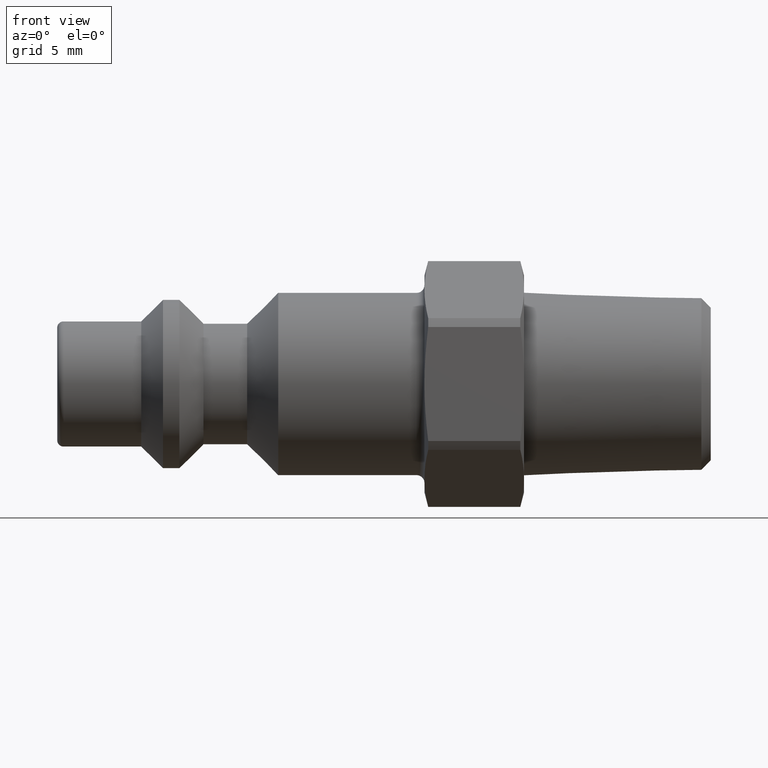
[diagram: clean part render]
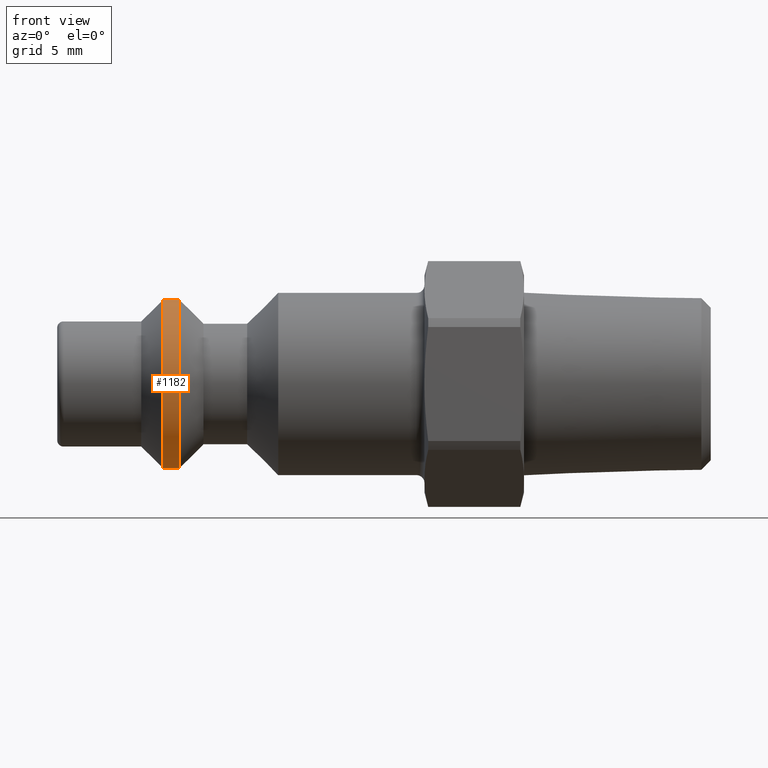
[diagram: same view with one face highlighted and labeled with its STEP entity id]
A machine part, front view. The second image highlights one B-rep face of the part: STEP entity #1182.
In plain terms, the highlighted cylindrical surface (bore or boss wall) has radius 5.45 mm, axis along (1, 0, 0).
Its self-contained STEP definition (entity closure, byte-faithful):
#1148=CARTESIAN_POINT('',(6.799999999999997,5.45,0.0));
#1149=VERTEX_POINT('',#1148);
#1150=CARTESIAN_POINT('',(6.799999999999997,0.0,0.0));
#1151=DIRECTION('',(1.0,0.0,0.0));
#1152=DIRECTION('',(0.0,1.0,0.0));
#1153=AXIS2_PLACEMENT_3D('',#1150,#1151,#1152);
#1154=CIRCLE('',#1153,5.45);
#1155=EDGE_CURVE('',#1149,#1149,#1154,.T.);
#1163=CARTESIAN_POINT('',(7.324999999999998,0.0,0.0));
#1164=DIRECTION('',(1.0,0.0,0.0));
#1165=DIRECTION('',(0.0,1.0,0.0));
#1166=AXIS2_PLACEMENT_3D('',#1163,#1164,#1165);
#1167=CYLINDRICAL_SURFACE('',#1166,5.45);
#1168=CARTESIAN_POINT('',(7.849999999999998,5.45,0.0));
#1169=VERTEX_POINT('',#1168);
#1170=CARTESIAN_POINT('',(7.849999999999998,0.0,0.0));
#1171=DIRECTION('',(1.0,0.0,0.0));
#1172=DIRECTION('',(0.0,1.0,0.0));
#1173=AXIS2_PLACEMENT_3D('',#1170,#1171,#1172);
#1174=CIRCLE('',#1173,5.45);
#1175=EDGE_CURVE('',#1169,#1169,#1174,.T.);
#1176=ORIENTED_EDGE('',*,*,#1175,.F.);
#1177=EDGE_LOOP('',(#1176));
#1178=FACE_OUTER_BOUND('',#1177,.T.);
#1179=ORIENTED_EDGE('',*,*,#1155,.T.);
#1180=EDGE_LOOP('',(#1179));
#1181=FACE_BOUND('',#1180,.T.);
#1182=ADVANCED_FACE('',(#1178,#1181),#1167,.T.);